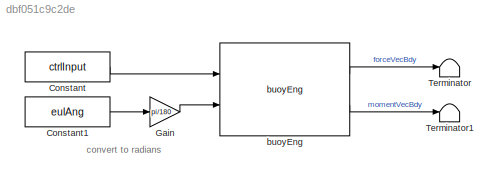
MODEL slx_dbf051c9c2de
KIND model
CONFIG AbsTol = auto
CONFIG EnableMultiTasking = off
CONFIG FixedStep = auto
CONFIG MaxStep = auto
CONFIG MinStep = auto
CONFIG RelTol = 1e-3
CONFIG SampleTimeConstraint = Unconstrained
CONFIG SolverName = VariableStepAuto
CONFIG StartTime = 0.0
CONFIG StopTime = simTime
BLOCK [Constant] Constant
  Value = ctrlInput
BLOCK [Constant] Constant1
  Value = eulAng
BLOCK [Gain] Gain
  Gain = pi/180
BLOCK [Terminator] Terminator
BLOCK [Terminator] Terminator1
BLOCK [Reference] buoyEng  REF=buoyEng_ul/buoyEng
  Ports = [2, 2]
  SourceBlock = buoyEng_ul/buoyEng
  SourceType = SubSystem
ANNOTATION (root): convert to radians
LINE Constant1:1 -> Gain:1
LINE Constant:1 -> buoyEng:1
LINE Gain:1 -> buoyEng:2
LINE buoyEng:1 -> Terminator:1
LINE buoyEng:2 -> Terminator1:1
